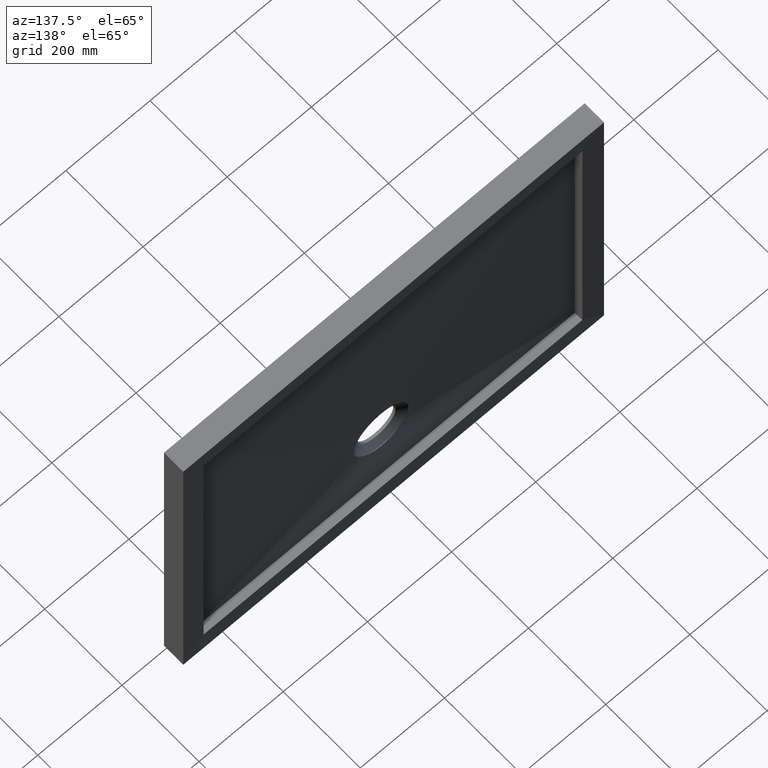
[diagram: clean part render]
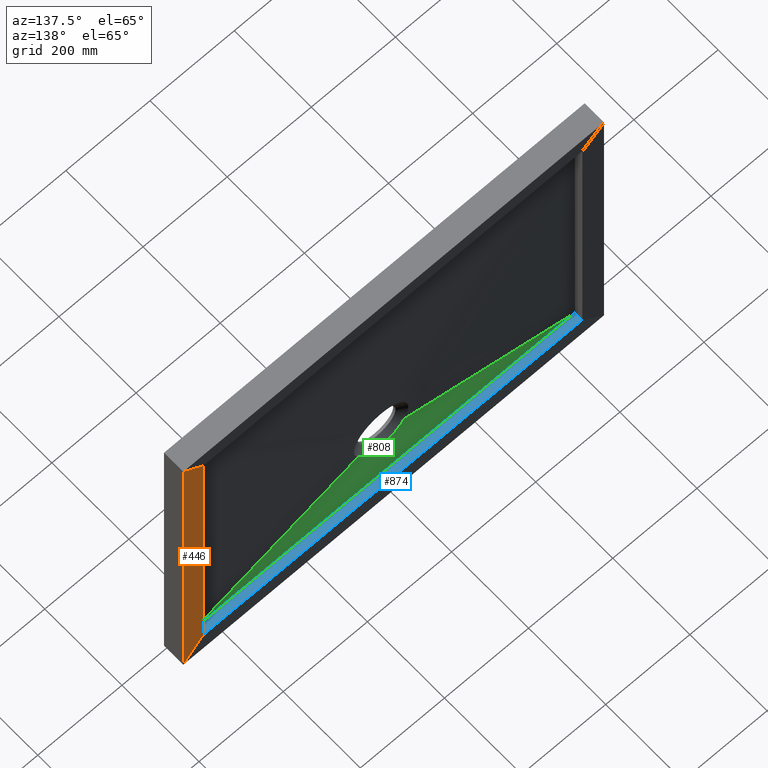
[diagram: same view with three faces highlighted in distinct colors, each labeled with its STEP entity id]
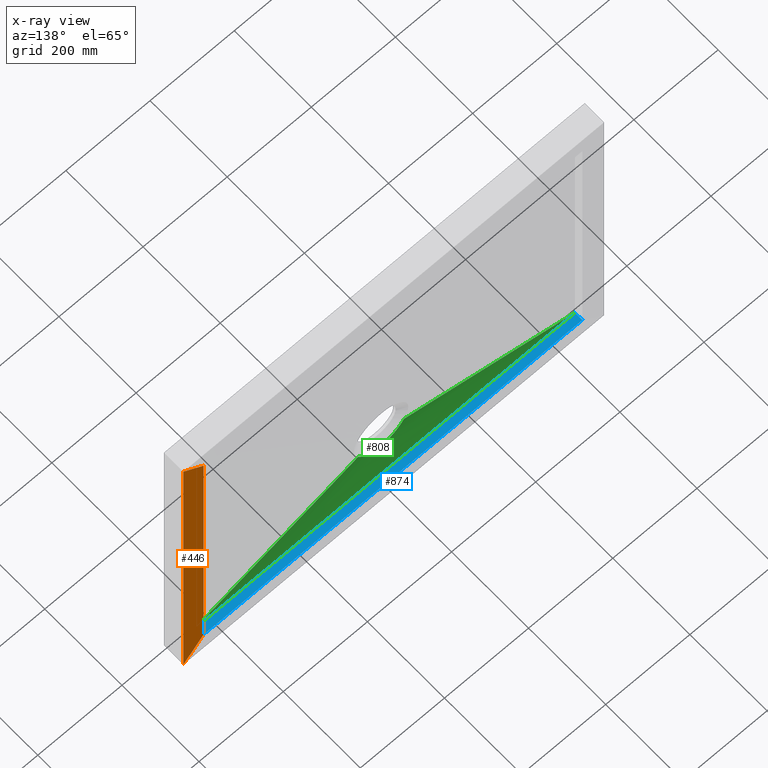
[diagram: x-ray of the same camera — body ghosted, the three highlighted faces saturated]
A machine part, auxiliary view with three faces highlighted in distinct colors.
The next image is the same camera in x-ray (body ghosted, the three faces saturated) — at least one of them is partly hidden behind the body in this view.
Their STEP definitions:

[orange] entity #446 — the highlighted planar face has unit normal (-0.0349, 0.9994, 0).
#13 = DIRECTION ( 'NONE',  ( 1.586032892321652000E-016, -0.0000000000000000000, 1.000000000000000000 ) ) ;
#27 = DIRECTION ( 'NONE',  ( -0.7068913075831633200, -0.02468518840782799400, -0.7068913075831639900 ) ) ;
#41 = EDGE_CURVE ( 'NONE', #367, #302, #329, .T. ) ;
#45 = FACE_OUTER_BOUND ( 'NONE', #499, .T. ) ;
#67 = DIRECTION ( 'NONE',  ( 1.586032892321652000E-016, 0.0000000000000000000, 1.000000000000000000 ) ) ;
#68 = ORIENTED_EDGE ( 'NONE', *, *, #786, .F. ) ;
#103 = CARTESIAN_POINT ( 'NONE',  ( 450.0000000000002300, 48.25745360236189200, 350.0000000000002300 ) ) ;
#144 = PLANE ( 'NONE',  #369 ) ;
#184 = VECTOR ( 'NONE', #577, 1000.000000000000000 ) ;
#194 = VECTOR ( 'NONE', #27, 1000.000000000000100 ) ;
#264 = DIRECTION ( 'NONE',  ( -0.7068913075831635400, -0.02468518840782801500, 0.7068913075831637600 ) ) ;
#265 = CARTESIAN_POINT ( 'NONE',  ( 100.2132754843556600, 36.04263202427947000, -0.2132754843552908700 ) ) ;
#302 = VERTEX_POINT ( 'NONE', #642 ) ;
#309 = VERTEX_POINT ( 'NONE', #673 ) ;
#329 = LINE ( 'NONE', #265, #370 ) ;
#335 = ORIENTED_EDGE ( 'NONE', *, *, #762, .F. ) ;
#367 = VERTEX_POINT ( 'NONE', #385 ) ;
#369 = AXIS2_PLACEMENT_3D ( 'NONE', #103, #1007, #13 ) ;
#370 = VECTOR ( 'NONE', #264, 1000.000000000000100 ) ;
#385 = CARTESIAN_POINT ( 'NONE',  ( 499.9000000000049800, 50.00000000000000000, -399.9000000000047500 ) ) ;
#429 = CARTESIAN_POINT ( 'NONE',  ( 0.2742113370290955000, 32.55268300197024400, -99.72578866297126900 ) ) ;
#446 = ADVANCED_FACE ( 'NONE', ( #45 ), #144, .T. ) ;
#499 = EDGE_LOOP ( 'NONE', ( #946, #967, #335, #68 ) ) ;
#506 = CARTESIAN_POINT ( 'NONE',  ( 450.0000000000001100, 48.25745360236189200, -349.9999999999998300 ) ) ;
#536 = EDGE_CURVE ( 'NONE', #563, #302, #916, .T. ) ;
#548 = VECTOR ( 'NONE', #67, 1000.000000000000000 ) ;
#563 = VERTEX_POINT ( 'NONE', #725 ) ;
#572 = LINE ( 'NONE', #738, #548 ) ;
#577 = DIRECTION ( 'NONE',  ( -1.586032892321652000E-016, 0.0000000000000000000, -1.000000000000000000 ) ) ;
#642 = CARTESIAN_POINT ( 'NONE',  ( 450.0000000000001100, 48.25745360236189200, -349.9999999999998900 ) ) ;
#659 = LINE ( 'NONE', #429, #194 ) ;
#673 = CARTESIAN_POINT ( 'NONE',  ( 499.9000000000050900, 50.00000000000000000, 399.9000000000051500 ) ) ;
#725 = CARTESIAN_POINT ( 'NONE',  ( 450.0000000000002300, 48.25745360236189200, 350.0000000000002300 ) ) ;
#738 = CARTESIAN_POINT ( 'NONE',  ( 499.9000000000050900, 50.00000000000000000, 350.0000000000002300 ) ) ;
#762 = EDGE_CURVE ( 'NONE', #309, #563, #659, .T. ) ;
#786 = EDGE_CURVE ( 'NONE', #367, #309, #572, .T. ) ;
#916 = LINE ( 'NONE', #506, #184 ) ;
#946 = ORIENTED_EDGE ( 'NONE', *, *, #41, .T. ) ;
#967 = ORIENTED_EDGE ( 'NONE', *, *, #536, .F. ) ;
#1007 = DIRECTION ( 'NONE',  ( -0.03489949670249561900, 0.9993908270190959800, 5.535174969562907700E-018 ) ) ;

[blue] entity #874 — the highlighted planar face has unit normal (-0, 0, -1).
#10 = FACE_OUTER_BOUND ( 'NONE', #700, .T. ) ;
#22 = VERTEX_POINT ( 'NONE', #457 ) ;
#32 = CARTESIAN_POINT ( 'NONE',  ( -449.9999999999998900, -1140.175425099138000, -349.9999999999998900 ) ) ;
#77 = ORIENTED_EDGE ( 'NONE', *, *, #146, .T. ) ;
#124 = LINE ( 'NONE', #32, #838 ) ;
#146 = EDGE_CURVE ( 'NONE', #547, #302, #515, .T. ) ;
#156 = CARTESIAN_POINT ( 'NONE',  ( 150.0000000000001400, 28.99999999999991500, -349.9999999999998900 ) ) ;
#187 = CARTESIAN_POINT ( 'NONE',  ( -449.9999999999998900, 29.00000000000000000, -349.9999999999998900 ) ) ;
#239 = VECTOR ( 'NONE', #891, 1000.000000000000000 ) ;
#302 = VERTEX_POINT ( 'NONE', #642 ) ;
#312 = EDGE_CURVE ( 'NONE', #22, #547, #854, .T. ) ;
#320 = CARTESIAN_POINT ( 'NONE',  ( 450.0000000000001100, -1140.175425099138000, -349.9999999999998900 ) ) ;
#389 = ORIENTED_EDGE ( 'NONE', *, *, #312, .T. ) ;
#457 = CARTESIAN_POINT ( 'NONE',  ( -449.9999999999998900, 29.00000000000000000, -349.9999999999998900 ) ) ;
#473 = CARTESIAN_POINT ( 'NONE',  ( -449.9999999999998900, 48.25745360236189200, -349.9999999999998900 ) ) ;
#515 = LINE ( 'NONE', #320, #239 ) ;
#516 = CARTESIAN_POINT ( 'NONE',  ( 450.0000000000001100, 29.00000000000000000, -349.9999999999998900 ) ) ;
#521 = LINE ( 'NONE', #473, #543 ) ;
#538 = CARTESIAN_POINT ( 'NONE',  ( 450.0000000000001100, -1140.175425099138000, -349.9999999999998900 ) ) ;
#543 = VECTOR ( 'NONE', #976, 1000.000000000000000 ) ;
#547 = VERTEX_POINT ( 'NONE', #556 ) ;
#556 = CARTESIAN_POINT ( 'NONE',  ( 450.0000000000001100, 29.00000000000000000, -349.9999999999998900 ) ) ;
#568 = DIRECTION ( 'NONE',  ( -1.000000000000000000, 0.0000000000000000000, 0.0000000000000000000 ) ) ;
#642 = CARTESIAN_POINT ( 'NONE',  ( 450.0000000000001100, 48.25745360236189200, -349.9999999999998900 ) ) ;
#692 = EDGE_CURVE ( 'NONE', #22, #801, #124, .T. ) ;
#700 = EDGE_LOOP ( 'NONE', ( #77, #788, #883, #389 ) ) ;
#734 = CARTESIAN_POINT ( 'NONE',  ( -149.9999999999999100, 28.99999999999991500, -349.9999999999998900 ) ) ;
#747 = CARTESIAN_POINT ( 'NONE',  ( -449.9999999999998900, 48.25745360236189200, -349.9999999999998900 ) ) ;
#774 = DIRECTION ( 'NONE',  ( -0.0000000000000000000, 0.0000000000000000000, -1.000000000000000000 ) ) ;
#787 = DIRECTION ( 'NONE',  ( -0.0000000000000000000, 1.000000000000000000, -0.0000000000000000000 ) ) ;
#788 = ORIENTED_EDGE ( 'NONE', *, *, #1024, .T. ) ;
#801 = VERTEX_POINT ( 'NONE', #747 ) ;
#838 = VECTOR ( 'NONE', #787, 1000.000000000000000 ) ;
#854 = B_SPLINE_CURVE_WITH_KNOTS ( 'NONE', 3,
 ( #187, #734, #156, #516 ),
 .UNSPECIFIED., .F., .F.,
 ( 4, 4 ),
 ( 0.0000000000000000000, 1.000000000000000000 ),
 .UNSPECIFIED. ) ;
#874 = ADVANCED_FACE ( 'NONE', ( #10 ), #879, .F. ) ;
#879 = PLANE ( 'NONE',  #1009 ) ;
#883 = ORIENTED_EDGE ( 'NONE', *, *, #692, .F. ) ;
#891 = DIRECTION ( 'NONE',  ( -0.0000000000000000000, 1.000000000000000000, -0.0000000000000000000 ) ) ;
#976 = DIRECTION ( 'NONE',  ( -1.000000000000000000, 0.0000000000000000000, 0.0000000000000000000 ) ) ;
#1009 = AXIS2_PLACEMENT_3D ( 'NONE', #538, #774, #568 ) ;
#1024 = EDGE_CURVE ( 'NONE', #302, #801, #521, .T. ) ;

[green] entity #808 — the highlighted face is a freeform B-spline surface patch.
#1 = CARTESIAN_POINT ( 'NONE',  ( 37.50000000000063200, 29.00000000000000000, -349.9999999999998900 ) ) ;
#8 = CARTESIAN_POINT ( 'NONE',  ( -206.2499999999995500, 29.00000000000000400, -349.9999999999998900 ) ) ;
#12 = CARTESIAN_POINT ( 'NONE',  ( 245.1284815430964800, 23.00000000000000000, -290.6554856446304000 ) ) ;
#17 = CARTESIAN_POINT ( 'NONE',  ( -35.77278929871880600, 16.99999999999999300, -236.5340092336629100 ) ) ;
#21 = B_SPLINE_SURFACE_WITH_KNOTS ( 'NONE', 3, 1, ( 
 ( #564, #772 ),
 ( #981, #813 ),
 ( #96, #17 ),
 ( #704, #911 ),
 ( #844, #618 ),
 ( #212, #375 ),
 ( #797, #412 ),
 ( #8, #853 ),
 ( #811, #619 ),
 ( #935, #97 ),
 ( #289, #1018 ),
 ( #275, #378 ),
 ( #752, #254 ),
 ( #33, #439 ),
 ( #765, #78 ),
 ( #458, #910 ),
 ( #1, #822 ),
 ( #544, #600 ),
 ( #1016, #204 ),
 ( #363, #268 ),
 ( #678, #430 ),
 ( #684, #355 ),
 ( #688, #426 ),
 ( #574, #650 ),
 ( #122, #591 ),
 ( #271, #238 ),
 ( #677, #960 ),
 ( #86, #39 ),
 ( #663, #830 ),
 ( #79, #928 ) ),
 .UNSPECIFIED., .F., .F., .F.,
 ( 4, 2, 2, 2, 2, 2, 2, 2, 2, 2, 2, 2, 2, 2, 4 ),
 ( 2, 2 ),
 ( 0.0000000000000000000, 0.1250000000000000000, 0.1875000000000000000, 0.2500000000000000000, 0.3125000000000000000, 0.3750000000000000000, 0.4375000000000000000, 0.5000000000000000000, 0.5625000000000000000, 0.6250000000000000000, 0.6875000000000000000, 0.7500000000000000000, 0.8125000000000000000, 0.8750000000000000000, 1.000000000000000000 ),
 ( 0.0000000000000000000, 1.000000000000000000 ),
 .UNSPECIFIED. ) ;
#22 = VERTEX_POINT ( 'NONE', #457 ) ;
#25 = VERTEX_POINT ( 'NONE', #197 ) ;
#26 = CARTESIAN_POINT ( 'NONE',  ( -48.79486790047790400, 17.54700538379253100, -242.9425298110730600 ) ) ;
#33 = CARTESIAN_POINT ( 'NONE',  ( -37.49999999999937500, 29.00000000000000400, -350.0000000000000000 ) ) ;
#39 = CARTESIAN_POINT ( 'NONE',  ( 35.77278929871904700, 17.00000000000000000, -236.5340092336629400 ) ) ;
#53 = CARTESIAN_POINT ( 'NONE',  ( -2.558664273398293700E-015, 18.69696969696968500, -264.9999999999997700 ) ) ;
#58 = VERTEX_POINT ( 'NONE', #91 ) ;
#78 = CARTESIAN_POINT ( 'NONE',  ( -2.078606174079141500, 17.00000000000000400, -251.0000000000000000 ) ) ;
#79 = CARTESIAN_POINT ( 'NONE',  ( 450.0000000000001100, 29.00000000000000000, -349.9999999999998900 ) ) ;
#86 = CARTESIAN_POINT ( 'NONE',  ( 375.0000000000003400, 29.00000000000000400, -350.0000000000000000 ) ) ;
#91 = CARTESIAN_POINT ( 'NONE',  ( 48.79486790047779700, 17.54700538379253100, -242.9425298110731700 ) ) ;
#92 = CARTESIAN_POINT ( 'NONE',  ( -42.27031766317309500, 17.72514141460944300, -249.4315145483441000 ) ) ;
#96 = CARTESIAN_POINT ( 'NONE',  ( -374.9999999999997200, 29.00000000000000000, -349.9999999999998900 ) ) ;
#97 = CARTESIAN_POINT ( 'NONE',  ( -16.21857928232061100, 17.00000000000000000, -248.3942316053567100 ) ) ;
#109 = CARTESIAN_POINT ( 'NONE',  ( 27.80381735017764600, 18.19566110800068900, -258.7644936567094200 ) ) ;
#111 = CARTESIAN_POINT ( 'NONE',  ( 24.66507980852317100, 18.29451570564532800, -260.1822709269526400 ) ) ;
#122 = CARTESIAN_POINT ( 'NONE',  ( 262.5000000000005100, 29.00000000000000400, -350.0000000000000000 ) ) ;
#130 = CARTESIAN_POINT ( 'NONE',  ( -54.25382942381499900, 17.40992129437162500, -235.3654013123290300 ) ) ;
#156 = CARTESIAN_POINT ( 'NONE',  ( 150.0000000000001400, 28.99999999999991500, -349.9999999999998900 ) ) ;
#163 = CARTESIAN_POINT ( 'NONE',  ( -31.92573241240394900, 18.06017318268045100, -256.6311007063324600 ) ) ;
#164 = CARTESIAN_POINT ( 'NONE',  ( -2.558664273398293700E-015, 18.69696969696968500, -264.9999999999997700 ) ) ;
#180 = CARTESIAN_POINT ( 'NONE',  ( 4.577930960771151800, 18.68579535252266800, -264.8793969361756800 ) ) ;
#187 = CARTESIAN_POINT ( 'NONE',  ( -449.9999999999998900, 29.00000000000000000, -349.9999999999998900 ) ) ;
#192 = CARTESIAN_POINT ( 'NONE',  ( -15.97410326814218900, 18.52357729010027800, -263.0487533362775100 ) ) ;
#197 = CARTESIAN_POINT ( 'NONE',  ( -48.79486790047790400, 17.54700538379253100, -242.9425298110730600 ) ) ;
#204 = CARTESIAN_POINT ( 'NONE',  ( 10.30027545330003500, 17.00000000000000400, -249.9909850067132000 ) ) ;
#212 = CARTESIAN_POINT ( 'NONE',  ( -262.4999999999996000, 29.00000000000000400, -349.9999999999998900 ) ) ;
#235 = B_SPLINE_CURVE_WITH_KNOTS ( 'NONE', 3,
 ( #164, #579, #763, #581, #817, #339, #542, #192, #419, #675, #344, #583, #485, #953, #163, #253, #638, #480, #92, #715, #898, #26 ),
 .UNSPECIFIED., .F., .F.,
 ( 4, 2, 2, 2, 2, 2, 2, 2, 2, 2, 4 ),
 ( 0.05494572617394564300, 0.06181539657290007600, 0.06525023177237727900, 0.06868506697185448900, 0.07555473737080889400, 0.08242440776976331400, 0.08585924296924055100, 0.08929407816871778900, 0.09616374856767227800, 0.1030334189666267500, 0.1099030893655812400 ),
 .UNSPECIFIED. ) ;
#238 = CARTESIAN_POINT ( 'NONE',  ( 30.09080413276353000, 17.00000000000000700, -241.2208349697699000 ) ) ;
#250 = CARTESIAN_POINT ( 'NONE',  ( 31.90896079738218900, 18.06073237362674900, -256.6405970174946600 ) ) ;
#253 = CARTESIAN_POINT ( 'NONE',  ( -34.91334610979985300, 17.96051288827008100, -254.8761705345234200 ) ) ;
#254 = CARTESIAN_POINT ( 'NONE',  ( -8.268042586498488300, 17.00000000000000400, -250.3679258920841200 ) ) ;
#258 = VECTOR ( 'NONE', #565, 1000.000000000000100 ) ;
#268 = CARTESIAN_POINT ( 'NONE',  ( 14.27558496213716100, 17.00000000000000400, -249.0041011584141000 ) ) ;
#271 = CARTESIAN_POINT ( 'NONE',  ( 300.0000000000004500, 29.00000000000000400, -350.0000000000000000 ) ) ;
#273 = CARTESIAN_POINT ( 'NONE',  ( -2.558664273398293700E-015, 18.69696969696968500, -264.9999999999997700 ) ) ;
#275 = CARTESIAN_POINT ( 'NONE',  ( -93.74999999999941700, 29.00000000000000400, -350.0000000000000000 ) ) ;
#286 = ORIENTED_EDGE ( 'NONE', *, *, #900, .F. ) ;
#289 = CARTESIAN_POINT ( 'NONE',  ( -131.2499999999994600, 29.00000000000000400, -349.9999999999999400 ) ) ;
#305 = CARTESIAN_POINT ( 'NONE',  ( 34.90268903944412000, 17.96086892631333900, -254.8831334426558900 ) ) ;
#312 = EDGE_CURVE ( 'NONE', #22, #547, #854, .T. ) ;
#338 = CARTESIAN_POINT ( 'NONE',  ( 52.60422173988175100, 17.44703666610567100, -238.0137762145501800 ) ) ;
#339 = CARTESIAN_POINT ( 'NONE',  ( -11.45480280853536700, 18.60595683780675500, -263.9932387411976700 ) ) ;
#344 = CARTESIAN_POINT ( 'NONE',  ( -24.67164448420701800, 18.29432019251129700, -260.1797036532193500 ) ) ;
#355 = CARTESIAN_POINT ( 'NONE',  ( 19.97872975558257700, 16.99999999999999600, -246.9669492724749500 ) ) ;
#363 = CARTESIAN_POINT ( 'NONE',  ( 131.2500000000006000, 29.00000000000000000, -349.9999999999999400 ) ) ;
#375 = CARTESIAN_POINT ( 'NONE',  ( -26.93862743730387900, 17.00000000000000400, -243.3465578882046700 ) ) ;
#378 = CARTESIAN_POINT ( 'NONE',  ( -10.30027545329978400, 17.00000000000000400, -249.9909850067131200 ) ) ;
#379 = FACE_OUTER_BOUND ( 'NONE', #719, .T. ) ;
#392 = CARTESIAN_POINT ( 'NONE',  ( 22.53158989100331800, 18.35789995440777000, -261.0128575097554100 ) ) ;
#412 = CARTESIAN_POINT ( 'NONE',  ( -25.27579257315166200, 16.99999999999999600, -244.3393851754065300 ) ) ;
#414 = CARTESIAN_POINT ( 'NONE',  ( 50.78249439544738000, 17.49131444457117700, -240.5380174880166100 ) ) ;
#417 = CARTESIAN_POINT ( 'NONE',  ( 54.25382942381502000, 17.40992129437161800, -235.3654013123289400 ) ) ;
#419 = CARTESIAN_POINT ( 'NONE',  ( -18.18782553341182200, 18.47239858282710000, -262.4455396210356100 ) ) ;
#426 = CARTESIAN_POINT ( 'NONE',  ( 21.79583720548916800, 16.99999999999999600, -246.1496289090809500 ) ) ;
#430 = CARTESIAN_POINT ( 'NONE',  ( 16.21857928232085700, 16.99999999999999600, -248.3942316053567100 ) ) ;
#433 = CARTESIAN_POINT ( 'NONE',  ( 30.89086769719474300, 18.09467145251075600, -257.2021631214991000 ) ) ;
#434 = VERTEX_POINT ( 'NONE', #53 ) ;
#439 = CARTESIAN_POINT ( 'NONE',  ( -4.157154706687819600, 17.00000000000000400, -250.8724537606285600 ) ) ;
#448 = CARTESIAN_POINT ( 'NONE',  ( -54.25382942381499900, 17.40992129437162500, -235.3654013123290300 ) ) ;
#450 = CARTESIAN_POINT ( 'NONE',  ( 47.26076180827784200, 17.58525751682803300, -244.6857085302486300 ) ) ;
#457 = CARTESIAN_POINT ( 'NONE',  ( -449.9999999999998900, 29.00000000000000000, -349.9999999999998900 ) ) ;
#458 = CARTESIAN_POINT ( 'NONE',  ( 18.75000000000062900, 29.00000000000000000, -349.9999999999998900 ) ) ;
#480 = CARTESIAN_POINT ( 'NONE',  ( -40.50622258365798000, 17.77903073707041800, -250.8869483814498800 ) ) ;
#485 = CARTESIAN_POINT ( 'NONE',  ( -28.85227014052497900, 18.16168309826788600, -258.2570618326628800 ) ) ;
#500 = CARTESIAN_POINT ( 'NONE',  ( 15.96822132550124200, 18.52371221602736300, -263.0503455310733900 ) ) ;
#516 = CARTESIAN_POINT ( 'NONE',  ( 450.0000000000001100, 29.00000000000000000, -349.9999999999998900 ) ) ;
#523 = LINE ( 'NONE', #12, #676 ) ;
#526 = VERTEX_POINT ( 'NONE', #130 ) ;
#533 = CARTESIAN_POINT ( 'NONE',  ( 2.289313584643030800, 18.69696969696969500, -264.9999999999998900 ) ) ;
#540 = CARTESIAN_POINT ( 'NONE',  ( 45.64755976309165700, 17.62828849212025500, -246.3309801834130300 ) ) ;
#542 = CARTESIAN_POINT ( 'NONE',  ( -12.59315356931770300, 18.58700411615819100, -263.7788507367416700 ) ) ;
#544 = CARTESIAN_POINT ( 'NONE',  ( 75.00000000000062500, 29.00000000000000000, -349.9999999999998900 ) ) ;
#547 = VERTEX_POINT ( 'NONE', #556 ) ;
#556 = CARTESIAN_POINT ( 'NONE',  ( 450.0000000000001100, 29.00000000000000000, -349.9999999999998900 ) ) ;
#557 = ORIENTED_EDGE ( 'NONE', *, *, #849, .F. ) ;
#561 = CARTESIAN_POINT ( 'NONE',  ( 11.44077155028450400, 18.60617566307513500, -263.9957047678499900 ) ) ;
#564 = CARTESIAN_POINT ( 'NONE',  ( -449.9999999999998900, 29.00000000000000000, -349.9999999999998900 ) ) ;
#565 = DIRECTION ( 'NONE',  ( -0.9601348517843009100, 0.02811913121988031700, -0.2781193643897842400 ) ) ;
#569 = CARTESIAN_POINT ( 'NONE',  ( -48.79486790047790400, 17.54700538379253100, -242.9425298110730600 ) ) ;
#574 = CARTESIAN_POINT ( 'NONE',  ( 243.7500000000005100, 29.00000000000000400, -350.0000000000000000 ) ) ;
#579 = CARTESIAN_POINT ( 'NONE',  ( -2.289798440964664600, 18.69696969696968500, -264.9999999999997700 ) ) ;
#581 = CARTESIAN_POINT ( 'NONE',  ( -8.017099879067243900, 18.65259998233329200, -264.5139779172791300 ) ) ;
#583 = CARTESIAN_POINT ( 'NONE',  ( -27.81458319874005300, 18.19531637889618400, -258.7594303479573900 ) ) ;
#586 = B_SPLINE_CURVE_WITH_KNOTS ( 'NONE', 3,
 ( #417, #338, #414, #978 ),
 .UNSPECIFIED., .F., .F.,
 ( 4, 4 ),
 ( 0.0000000000000000000, 0.009339803490830547000 ),
 .UNSPECIFIED. ) ;
#588 = VERTEX_POINT ( 'NONE', #865 ) ;
#591 = CARTESIAN_POINT ( 'NONE',  ( 26.93862743730414500, 17.00000000000000400, -243.3465578882046400 ) ) ;
#592 = EDGE_CURVE ( 'NONE', #526, #22, #690, .T. ) ;
#600 = CARTESIAN_POINT ( 'NONE',  ( 8.268042586498744100, 17.00000000000000400, -250.3679258920840600 ) ) ;
#611 = CARTESIAN_POINT ( 'NONE',  ( 42.26879574579473300, 17.72518592016948700, -249.4328670348091900 ) ) ;
#618 = CARTESIAN_POINT ( 'NONE',  ( -30.09080413276328200, 17.00000000000000400, -241.2208349697700400 ) ) ;
#619 = CARTESIAN_POINT ( 'NONE',  ( -19.97872975558232900, 16.99999999999999600, -246.9669492724749500 ) ) ;
#625 = B_SPLINE_CURVE_WITH_KNOTS ( 'NONE', 3,
 ( #569, #732, #639, #448 ),
 .UNSPECIFIED., .F., .F.,
 ( 4, 4 ),
 ( 6.938893903907228400E-018, 0.009339803490830321500 ),
 .UNSPECIFIED. ) ;
#638 = CARTESIAN_POINT ( 'NONE',  ( -36.82773101544441400, 17.89669798336749600, -253.6092698311334200 ) ) ;
#639 = CARTESIAN_POINT ( 'NONE',  ( -52.60422173988169400, 17.44703666610567400, -238.0137762145501500 ) ) ;
#649 = ORIENTED_EDGE ( 'NONE', *, *, #726, .F. ) ;
#650 = CARTESIAN_POINT ( 'NONE',  ( 25.27579257315192500, 17.00000000000000000, -244.3393851754065300 ) ) ;
#663 = CARTESIAN_POINT ( 'NONE',  ( 412.5000000000002300, 29.00000000000000400, -349.9999999999999400 ) ) ;
#675 = CARTESIAN_POINT ( 'NONE',  ( -22.53659666726100500, 18.35775743802281900, -261.0110172579786100 ) ) ;
#676 = VECTOR ( 'NONE', #805, 1000.000000000000100 ) ;
#677 = CARTESIAN_POINT ( 'NONE',  ( 318.7500000000004000, 29.00000000000000400, -350.0000000000000000 ) ) ;
#678 = CARTESIAN_POINT ( 'NONE',  ( 150.0000000000005700, 29.00000000000000400, -350.0000000000000000 ) ) ;
#682 = CARTESIAN_POINT ( 'NONE',  ( 8.009797274197563200, 18.65267943106634600, -264.5148552451069600 ) ) ;
#684 = CARTESIAN_POINT ( 'NONE',  ( 187.5000000000005700, 29.00000000000000400, -350.0000000000000000 ) ) ;
#688 = CARTESIAN_POINT ( 'NONE',  ( 206.2500000000005700, 29.00000000000000400, -350.0000000000000000 ) ) ;
#690 = LINE ( 'NONE', #958, #258 ) ;
#704 = CARTESIAN_POINT ( 'NONE',  ( -318.7499999999996600, 29.00000000000000400, -349.9999999999998900 ) ) ;
#715 = CARTESIAN_POINT ( 'NONE',  ( -45.64741423707769700, 17.62829352537660600, -246.3310690504477000 ) ) ;
#719 = EDGE_LOOP ( 'NONE', ( #557, #919, #954, #828, #888, #286, #649 ) ) ;
#726 = EDGE_CURVE ( 'NONE', #58, #434, #971, .T. ) ;
#732 = CARTESIAN_POINT ( 'NONE',  ( -50.78249439544742900, 17.49131444457118100, -240.5380174880165800 ) ) ;
#734 = CARTESIAN_POINT ( 'NONE',  ( -149.9999999999999100, 28.99999999999991500, -349.9999999999998900 ) ) ;
#752 = CARTESIAN_POINT ( 'NONE',  ( -74.99999999999940300, 29.00000000000000400, -350.0000000000000000 ) ) ;
#763 = CARTESIAN_POINT ( 'NONE',  ( -4.580293370280304400, 18.68579045396349500, -264.8793484968114200 ) ) ;
#765 = CARTESIAN_POINT ( 'NONE',  ( -18.74999999999937100, 29.00000000000000000, -349.9999999999999400 ) ) ;
#772 = CARTESIAN_POINT ( 'NONE',  ( -40.25696308619263400, 17.00000000000000000, -231.3109712892609200 ) ) ;
#797 = CARTESIAN_POINT ( 'NONE',  ( -243.7499999999996000, 29.00000000000000400, -349.9999999999998900 ) ) ;
#805 = DIRECTION ( 'NONE',  ( -0.9601348517843009100, -0.02811913121988031700, 0.2781193643897843000 ) ) ;
#808 = ADVANCED_FACE ( 'NONE', ( #379 ), #21, .F. ) ;
#811 = CARTESIAN_POINT ( 'NONE',  ( -187.4999999999994900, 29.00000000000000400, -349.9999999999998900 ) ) ;
#813 = CARTESIAN_POINT ( 'NONE',  ( -38.19734770157725000, 16.99999999999999600, -233.9590482123378200 ) ) ;
#817 = CARTESIAN_POINT ( 'NONE',  ( -9.162879761721477200, 18.63880840917722300, -264.3613917379246300 ) ) ;
#822 = CARTESIAN_POINT ( 'NONE',  ( 4.157154706688072700, 17.00000000000000400, -250.8724537606285000 ) ) ;
#828 = ORIENTED_EDGE ( 'NONE', *, *, #592, .F. ) ;
#830 = CARTESIAN_POINT ( 'NONE',  ( 38.19734770157749200, 17.00000000000000000, -233.9590482123378500 ) ) ;
#844 = CARTESIAN_POINT ( 'NONE',  ( -299.9999999999996600, 29.00000000000000400, -349.9999999999998900 ) ) ;
#849 = EDGE_CURVE ( 'NONE', #588, #58, #586, .T. ) ;
#851 = CARTESIAN_POINT ( 'NONE',  ( 9.153575729122513500, 18.63892388170440700, -264.3626718973880500 ) ) ;
#853 = CARTESIAN_POINT ( 'NONE',  ( -21.79583720548891500, 17.00000000000000000, -246.1496289090809200 ) ) ;
#854 = B_SPLINE_CURVE_WITH_KNOTS ( 'NONE', 3,
 ( #187, #734, #156, #516 ),
 .UNSPECIFIED., .F., .F.,
 ( 4, 4 ),
 ( 0.0000000000000000000, 1.000000000000000000 ),
 .UNSPECIFIED. ) ;
#863 = CARTESIAN_POINT ( 'NONE',  ( 12.58307583173123900, 18.58718081394793800, -263.7808650269412300 ) ) ;
#865 = CARTESIAN_POINT ( 'NONE',  ( 54.25382942381502000, 17.40992129437161800, -235.3654013123289400 ) ) ;
#888 = ORIENTED_EDGE ( 'NONE', *, *, #969, .F. ) ;
#898 = CARTESIAN_POINT ( 'NONE',  ( -47.26043320773924700, 17.58526571031059400, -244.6860819134642500 ) ) ;
#900 = EDGE_CURVE ( 'NONE', #434, #25, #235, .T. ) ;
#901 = CARTESIAN_POINT ( 'NONE',  ( 36.82015781901896600, 17.89694485695625700, -253.6145855944766900 ) ) ;
#907 = EDGE_CURVE ( 'NONE', #547, #588, #523, .T. ) ;
#910 = CARTESIAN_POINT ( 'NONE',  ( 2.078606174079396000, 17.00000000000000400, -250.9999999999999400 ) ) ;
#911 = CARTESIAN_POINT ( 'NONE',  ( -31.58016397642578700, 17.00000000000000700, -240.0880258237548600 ) ) ;
#919 = ORIENTED_EDGE ( 'NONE', *, *, #907, .F. ) ;
#921 = CARTESIAN_POINT ( 'NONE',  ( 48.79486790047779700, 17.54700538379253100, -242.9425298110731700 ) ) ;
#927 = CARTESIAN_POINT ( 'NONE',  ( 18.18315920034284600, 18.47251104292326600, -262.4468898025917800 ) ) ;
#928 = CARTESIAN_POINT ( 'NONE',  ( 40.25696308619288300, 17.00000000000000000, -231.3109712892608900 ) ) ;
#935 = CARTESIAN_POINT ( 'NONE',  ( -149.9999999999994600, 29.00000000000000400, -349.9999999999998900 ) ) ;
#953 = CARTESIAN_POINT ( 'NONE',  ( -30.90736079096917900, 18.09412479634183400, -257.1933020079571300 ) ) ;
#954 = ORIENTED_EDGE ( 'NONE', *, *, #312, .F. ) ;
#958 = CARTESIAN_POINT ( 'NONE',  ( -245.1284815430962900, 23.00000000000000000, -290.6554856446304000 ) ) ;
#960 = CARTESIAN_POINT ( 'NONE',  ( 31.58016397642602500, 17.00000000000000000, -240.0880258237548000 ) ) ;
#969 = EDGE_CURVE ( 'NONE', #25, #526, #625, .T. ) ;
#971 = B_SPLINE_CURVE_WITH_KNOTS ( 'NONE', 3,
 ( #921, #450, #540, #611, #991, #901, #305, #250, #433, #997, #109, #111, #392, #927, #500, #863, #561, #851, #682, #180, #533, #273 ),
 .UNSPECIFIED., .F., .F.,
 ( 4, 2, 2, 2, 2, 2, 2, 2, 2, 2, 4 ),
 ( 0.0000000000000000000, 0.006868215771743211400, 0.01373643154348642300, 0.02060464731522963400, 0.02403875520110123100, 0.02747286308697282800, 0.03434107885871600500, 0.04120929463045919200, 0.04464340251633080300, 0.04807751040220242100, 0.05494572617394564300 ),
 .UNSPECIFIED. ) ;
#978 = CARTESIAN_POINT ( 'NONE',  ( 48.79486790047779700, 17.54700538379253100, -242.9425298110731700 ) ) ;
#981 = CARTESIAN_POINT ( 'NONE',  ( -412.4999999999998300, 29.00000000000000000, -349.9999999999998900 ) ) ;
#991 = CARTESIAN_POINT ( 'NONE',  ( 40.50321795637406600, 17.77912223918272300, -250.8894600626043700 ) ) ;
#997 = CARTESIAN_POINT ( 'NONE',  ( 28.83979255388812400, 18.16208875018726600, -258.2631919681103900 ) ) ;
#1016 = CARTESIAN_POINT ( 'NONE',  ( 93.75000000000061100, 29.00000000000000000, -349.9999999999999400 ) ) ;
#1018 = CARTESIAN_POINT ( 'NONE',  ( -14.27558496213690900, 17.00000000000000400, -249.0041011584141000 ) ) ;